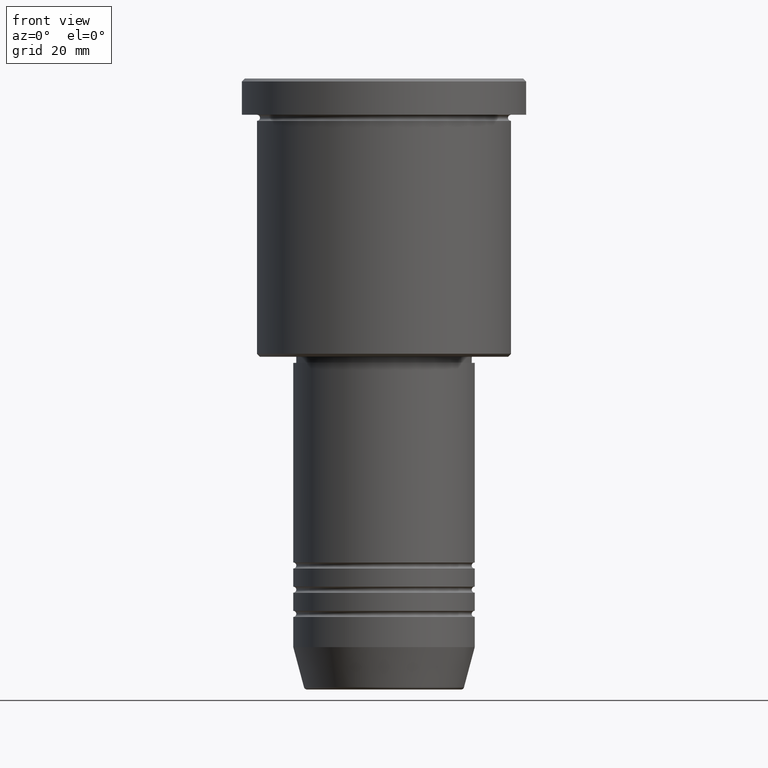
[diagram: clean part render]
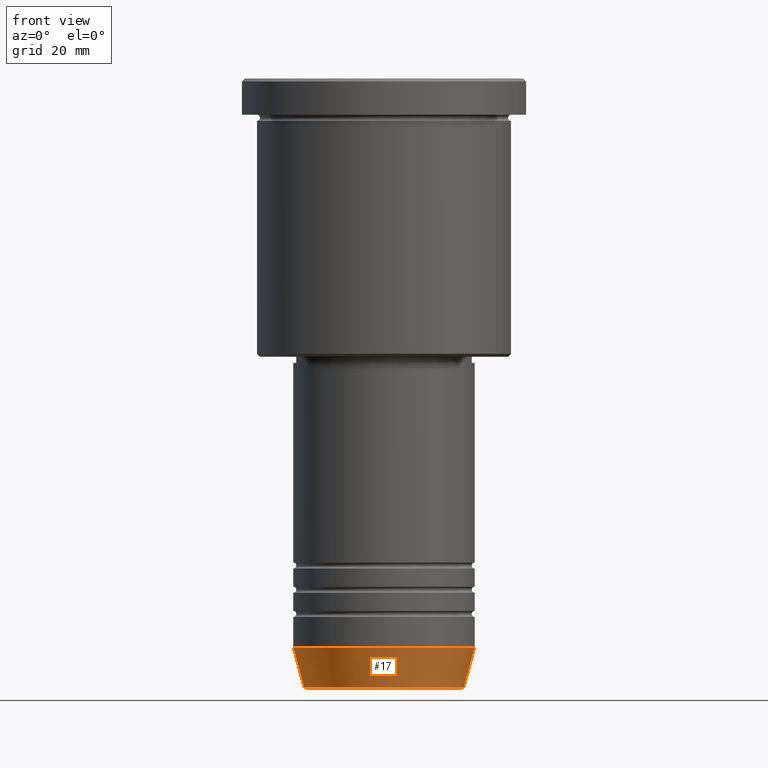
[diagram: same view with one face highlighted and labeled with its STEP entity id]
A machine part, front view. The second image highlights one B-rep face of the part: STEP entity #17.
In plain terms, the highlighted conical surface has half-angle 15 deg.
Its self-contained STEP definition (entity closure, byte-faithful):
#17 = ADVANCED_FACE ( 'NONE', ( #184 ), #929, .T. ) ;
#22 = VERTEX_POINT ( 'NONE', #545 ) ;
#31 = VECTOR ( 'NONE', #37, 1000.000000000000000 ) ;
#37 = DIRECTION ( 'NONE',  ( -0.2588190451025213501, 3.169619151431772337E-17, 0.9659258262890680902 ) ) ;
#63 = VERTEX_POINT ( 'NONE', #541 ) ;
#119 = EDGE_CURVE ( 'NONE', #63, #22, #852, .T. ) ;
#145 = EDGE_CURVE ( 'NONE', #22, #515, #1100, .T. ) ;
#175 = DIRECTION ( 'NONE',  ( -0.000000000000000000, -0.000000000000000000, 1.000000000000000000 ) ) ;
#184 = FACE_OUTER_BOUND ( 'NONE', #532, .T. ) ;
#293 = VERTEX_POINT ( 'NONE', #419 ) ;
#350 = CIRCLE ( 'NONE', #1098, 15.00000000000000000 ) ;
#419 = CARTESIAN_POINT ( 'NONE',  ( -15.00000000000000000, 1.836970198721029589E-15, -94.00000000000000000 ) ) ;
#426 = AXIS2_PLACEMENT_3D ( 'NONE', #896, #175, #722 ) ;
#471 = DIRECTION ( 'NONE',  ( 1.000000000000000000, 0.000000000000000000, 0.000000000000000000 ) ) ;
#515 = VERTEX_POINT ( 'NONE', #982 ) ;
#525 = CARTESIAN_POINT ( 'NONE',  ( 0.000000000000000000, 0.000000000000000000, -94.00000000000000000 ) ) ;
#529 = CARTESIAN_POINT ( 'NONE',  ( -15.00000000000000000, 1.836970198721029589E-15, -94.00000000000000000 ) ) ;
#532 = EDGE_LOOP ( 'NONE', ( #783, #595, #914, #936 ) ) ;
#541 = CARTESIAN_POINT ( 'NONE',  ( -13.22365507213718594, 1.728200442216587992E-15, -100.6294095225512564 ) ) ;
#545 = CARTESIAN_POINT ( 'NONE',  ( 13.22365507213718594, 0.000000000000000000, -100.6294095225512564 ) ) ;
#573 = CARTESIAN_POINT ( 'NONE',  ( 0.000000000000000000, 0.000000000000000000, -100.6294095225512564 ) ) ;
#585 = VECTOR ( 'NONE', #831, 1000.000000000000000 ) ;
#592 = DIRECTION ( 'NONE',  ( -0.000000000000000000, -0.000000000000000000, 1.000000000000000000 ) ) ;
#595 = ORIENTED_EDGE ( 'NONE', *, *, #119, .T. ) ;
#722 = DIRECTION ( 'NONE',  ( 1.000000000000000000, 0.000000000000000000, 0.000000000000000000 ) ) ;
#750 = DIRECTION ( 'NONE',  ( -0.000000000000000000, -0.000000000000000000, 1.000000000000000000 ) ) ;
#783 = ORIENTED_EDGE ( 'NONE', *, *, #1042, .F. ) ;
#831 = DIRECTION ( 'NONE',  ( 0.2588190451025213501, 0.000000000000000000, 0.9659258262890680902 ) ) ;
#852 = CIRCLE ( 'NONE', #1173, 13.22365507213718594 ) ;
#896 = CARTESIAN_POINT ( 'NONE',  ( 0.000000000000000000, 0.000000000000000000, -94.00000000000000000 ) ) ;
#914 = ORIENTED_EDGE ( 'NONE', *, *, #145, .T. ) ;
#929 = CONICAL_SURFACE ( 'NONE', #426, 15.00000000000000000, 0.2617993877991500740 ) ;
#936 = ORIENTED_EDGE ( 'NONE', *, *, #1113, .F. ) ;
#963 = DIRECTION ( 'NONE',  ( 1.000000000000000000, 0.000000000000000000, 0.000000000000000000 ) ) ;
#982 = CARTESIAN_POINT ( 'NONE',  ( 15.00000000000000000, 0.000000000000000000, -94.00000000000000000 ) ) ;
#1015 = CARTESIAN_POINT ( 'NONE',  ( 15.00000000000000000, 0.000000000000000000, -94.00000000000000000 ) ) ;
#1042 = EDGE_CURVE ( 'NONE', #63, #293, #1147, .T. ) ;
#1098 = AXIS2_PLACEMENT_3D ( 'NONE', #525, #592, #963 ) ;
#1100 = LINE ( 'NONE', #1015, #585 ) ;
#1113 = EDGE_CURVE ( 'NONE', #293, #515, #350, .T. ) ;
#1147 = LINE ( 'NONE', #529, #31 ) ;
#1173 = AXIS2_PLACEMENT_3D ( 'NONE', #573, #750, #471 ) ;